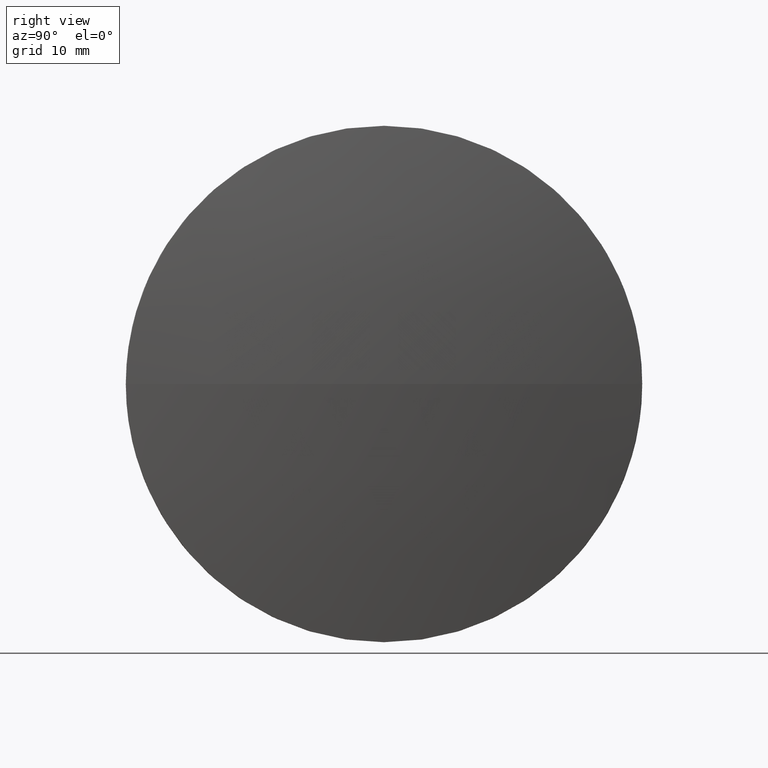
[diagram: clean part render]
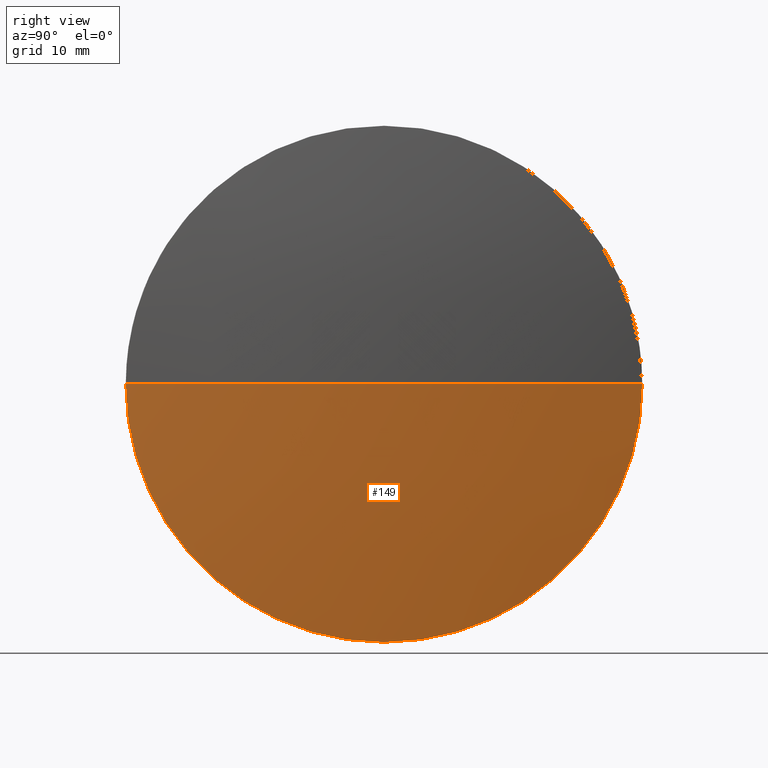
[diagram: same view with one face highlighted and labeled with its STEP entity id]
A machine part, right view. The second image highlights one B-rep face of the part: STEP entity #149.
In plain terms, the highlighted spherical surface has radius 257.97 mm.
Its self-contained STEP definition (entity closure, byte-faithful):
#2 = DIRECTION ( 'NONE',  ( -1.000000000000000000, -0.0000000000000000000, -0.0000000000000000000 ) ) ;
#6 = VERTEX_POINT ( 'NONE', #179 ) ;
#7 = SPHERICAL_SURFACE ( 'NONE', #29, 257.9702564102560100 ) ;
#12 = CARTESIAN_POINT ( 'NONE',  ( 210.4506197280091400, 32.67751769391763600, 0.0000000000000000000 ) ) ;
#18 = EDGE_CURVE ( 'NONE', #81, #6, #46, .T. ) ;
#23 = DIRECTION ( 'NONE',  ( -1.000000000000000000, -0.0000000000000000000, -0.0000000000000000000 ) ) ;
#29 = AXIS2_PLACEMENT_3D ( 'NONE', #94, #166, #112 ) ;
#32 = CARTESIAN_POINT ( 'NONE',  ( 210.4506197280091400, 32.67751769391763600, 0.0000000000000000000 ) ) ;
#39 = EDGE_CURVE ( 'NONE', #151, #66, #177, .T. ) ;
#43 = CARTESIAN_POINT ( 'NONE',  ( 465.3008761382651500, 32.67751769391772100, -40.00000000000000000 ) ) ;
#46 = CIRCLE ( 'NONE', #106, 40.00000000000000000 ) ;
#49 = CARTESIAN_POINT ( 'NONE',  ( 468.4208761382651000, 32.67751769391765000, 0.0000000000000000000 ) ) ;
#52 = EDGE_LOOP ( 'NONE', ( #80, #176, #98, #57 ) ) ;
#56 = DIRECTION ( 'NONE',  ( 0.0000000000000000000, 0.0000000000000000000, 1.000000000000000000 ) ) ;
#57 = ORIENTED_EDGE ( 'NONE', *, *, #138, .F. ) ;
#59 = CIRCLE ( 'NONE', #162, 40.00000000000000000 ) ;
#66 = VERTEX_POINT ( 'NONE', #128 ) ;
#75 = DIRECTION ( 'NONE',  ( 0.0000000000000000000, 1.224646799147353200E-016, -1.000000000000000000 ) ) ;
#76 = CARTESIAN_POINT ( 'NONE',  ( 465.3008761382651500, 32.67751769391771400, 0.0000000000000000000 ) ) ;
#80 = ORIENTED_EDGE ( 'NONE', *, *, #39, .F. ) ;
#81 = VERTEX_POINT ( 'NONE', #43 ) ;
#87 = DIRECTION ( 'NONE',  ( 1.000000000000000000, 0.0000000000000000000, 0.0000000000000000000 ) ) ;
#94 = CARTESIAN_POINT ( 'NONE',  ( 210.4506197280091400, 32.67751769391763600, 0.0000000000000000000 ) ) ;
#98 = ORIENTED_EDGE ( 'NONE', *, *, #18, .F. ) ;
#105 = EDGE_CURVE ( 'NONE', #151, #6, #160, .T. ) ;
#106 = AXIS2_PLACEMENT_3D ( 'NONE', #163, #23, #56 ) ;
#112 = DIRECTION ( 'NONE',  ( 0.0000000000000000000, 1.000000000000000000, 0.0000000000000000000 ) ) ;
#115 = FACE_OUTER_BOUND ( 'NONE', #52, .T. ) ;
#128 = CARTESIAN_POINT ( 'NONE',  ( 465.3008761382652100, 72.67751769391753700, 0.0000000000000000000 ) ) ;
#134 = DIRECTION ( 'NONE',  ( 0.0000000000000000000, 1.000000000000000000, 1.224646799147353200E-016 ) ) ;
#136 = AXIS2_PLACEMENT_3D ( 'NONE', #12, #164, #87 ) ;
#138 = EDGE_CURVE ( 'NONE', #66, #81, #59, .T. ) ;
#145 = DIRECTION ( 'NONE',  ( 0.0000000000000000000, 0.0000000000000000000, 1.000000000000000000 ) ) ;
#149 = ADVANCED_FACE ( 'NONE', ( #115 ), #7, .T. ) ;
#151 = VERTEX_POINT ( 'NONE', #49 ) ;
#152 = AXIS2_PLACEMENT_3D ( 'NONE', #32, #75, #134 ) ;
#160 = CIRCLE ( 'NONE', #152, 257.9702564102560100 ) ;
#162 = AXIS2_PLACEMENT_3D ( 'NONE', #76, #2, #145 ) ;
#163 = CARTESIAN_POINT ( 'NONE',  ( 465.3008761382651500, 32.67751769391771400, 0.0000000000000000000 ) ) ;
#164 = DIRECTION ( 'NONE',  ( -0.0000000000000000000, 0.0000000000000000000, 1.000000000000000000 ) ) ;
#166 = DIRECTION ( 'NONE',  ( -0.0000000000000000000, 0.0000000000000000000, -1.000000000000000000 ) ) ;
#176 = ORIENTED_EDGE ( 'NONE', *, *, #105, .T. ) ;
#177 = CIRCLE ( 'NONE', #136, 257.9702564102559600 ) ;
#179 = CARTESIAN_POINT ( 'NONE',  ( 465.3008761382652100, -7.322482306082179100, -4.898587196589389400E-015 ) ) ;